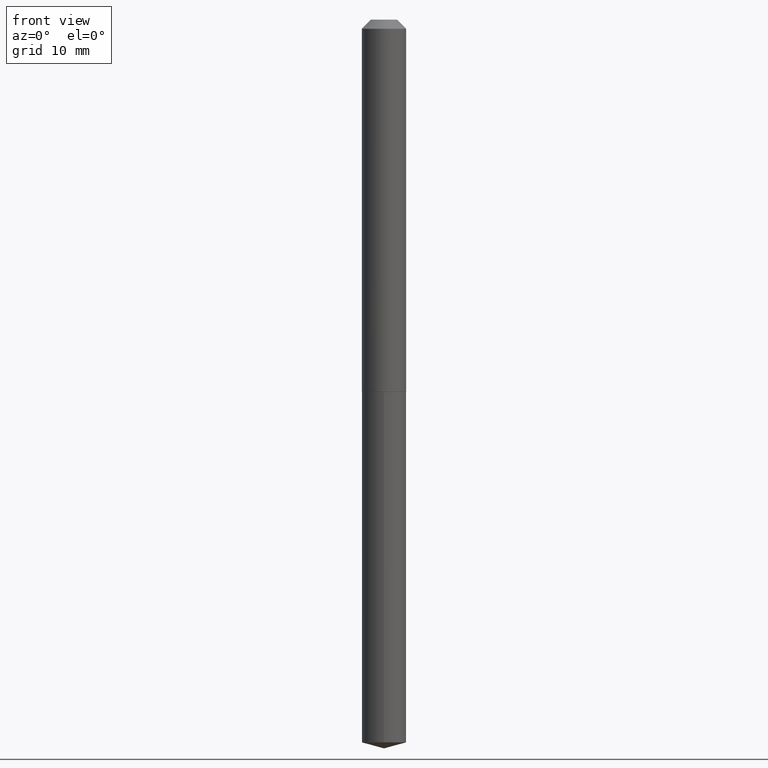
[diagram: clean part render]
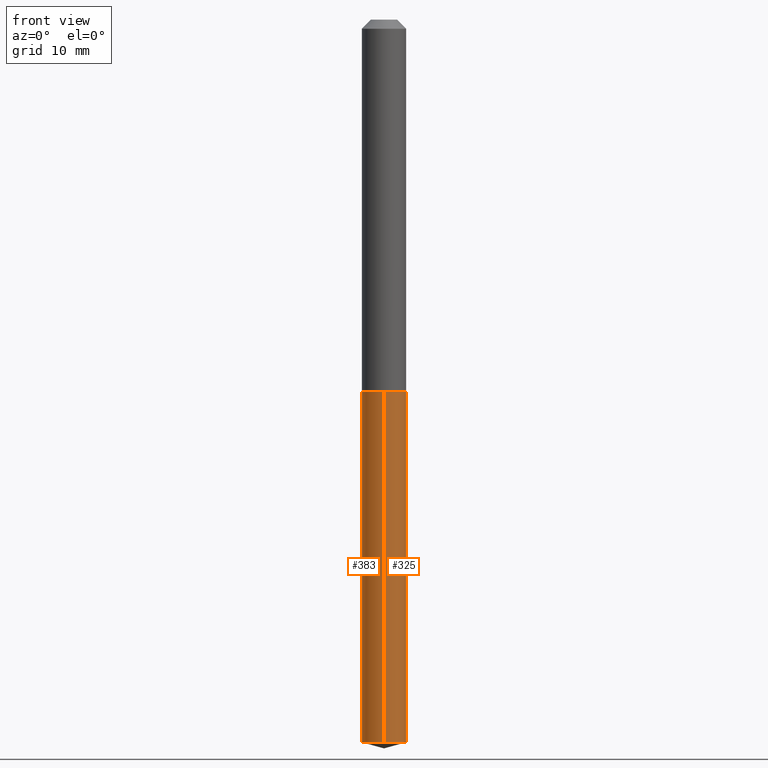
[diagram: same view with one multi-face feature highlighted, each face labeled with its STEP entity id]
A machine part, front view. The highlighted faces form ONE feature: a constant-radius fillet chain: 2 tangent blend faces with common blend radius 1.9304 mm. The faces share edges in the B-rep.
Their STEP definitions:
[1] entity #383 (Cylinder):
#3 = LINE ( 'NONE', #55, #130 ) ;
#4 = EDGE_LOOP ( 'NONE', ( #146, #76, #121, #308 ) ) ;
#5 = DIRECTION ( 'NONE',  ( -6.982962677686265133E-15, -1.000000000000000000, 3.594536833768767206E-15 ) ) ;
#7 = AXIS2_PLACEMENT_3D ( 'NONE', #343, #35, #64 ) ;
#24 = VERTEX_POINT ( 'NONE', #289 ) ;
#35 = DIRECTION ( 'NONE',  ( -2.445481943638452812E-29, 3.491462525262259251E-15, 1.000000000000000000 ) ) ;
#36 = DIRECTION ( 'NONE',  ( -2.445481943638452812E-29, 3.491462525262259251E-15, 1.000000000000000000 ) ) ;
#38 = VECTOR ( 'NONE', #298, 39.37007874015748143 ) ;
#44 = EDGE_CURVE ( 'NONE', #85, #24, #3, .T. ) ;
#55 = CARTESIAN_POINT ( 'NONE',  ( 5.400124791777073865E-16, 0.07599999999999554334, -1.277000000000000357 ) ) ;
#64 = DIRECTION ( 'NONE',  ( -6.982962677686265133E-15, -1.000000000000000000, 0.000000000000000000 ) ) ;
#73 = DIRECTION ( 'NONE',  ( -6.982962677686265133E-15, -1.000000000000000000, 3.594536833768767206E-15 ) ) ;
#74 = CARTESIAN_POINT ( 'NONE',  ( -5.307051635041250548E-16, -0.07600000000000446676, -1.276999999999999691 ) ) ;
#76 = ORIENTED_EDGE ( 'NONE', *, *, #134, .T. ) ;
#85 = VERTEX_POINT ( 'NONE', #307 ) ;
#86 = CYLINDRICAL_SURFACE ( 'NONE', #250, 0.07600000000000001199 ) ;
#101 = CARTESIAN_POINT ( 'NONE',  ( 3.122863665498419694E-29, -4.458621669702696819E-15, -1.277000000000000135 ) ) ;
#110 = LINE ( 'NONE', #74, #38 ) ;
#121 = ORIENTED_EDGE ( 'NONE', *, *, #340, .T. ) ;
#130 = VECTOR ( 'NONE', #153, 39.37007874015748143 ) ;
#134 = EDGE_CURVE ( 'NONE', #85, #389, #275, .T. ) ;
#146 = ORIENTED_EDGE ( 'NONE', *, *, #44, .F. ) ;
#148 = AXIS2_PLACEMENT_3D ( 'NONE', #101, #36, #73 ) ;
#153 = DIRECTION ( 'NONE',  ( -2.445481943638452812E-29, 3.491462525262259251E-15, 1.000000000000000000 ) ) ;
#154 = DIRECTION ( 'NONE',  ( -2.445481943638452812E-29, 3.491462525262259251E-15, 1.000000000000000000 ) ) ;
#197 = CARTESIAN_POINT ( 'NONE',  ( -5.307051635041250548E-16, -0.07600000000000446676, -1.276999999999999691 ) ) ;
#250 = AXIS2_PLACEMENT_3D ( 'NONE', #311, #154, #5 ) ;
#275 = CIRCLE ( 'NONE', #7, 0.07600000000000001199 ) ;
#280 = EDGE_CURVE ( 'NONE', #24, #290, #324, .T. ) ;
#285 = CARTESIAN_POINT ( 'NONE',  ( -5.307051635040953739E-16, -0.07600000000000863010, -2.479635861375235173 ) ) ;
#289 = CARTESIAN_POINT ( 'NONE',  ( 5.400124791777368701E-16, 0.07599999999999554334, -1.277000000000000357 ) ) ;
#290 = VERTEX_POINT ( 'NONE', #197 ) ;
#298 = DIRECTION ( 'NONE',  ( -2.445481943638452812E-29, 3.491462525262259251E-15, 1.000000000000000000 ) ) ;
#307 = CARTESIAN_POINT ( 'NONE',  ( 5.400124791777365743E-16, 0.07599999999999132450, -2.479635861375235173 ) ) ;
#308 = ORIENTED_EDGE ( 'NONE', *, *, #280, .F. ) ;
#311 = CARTESIAN_POINT ( 'NONE',  ( 3.122863665498419694E-29, -4.458621669702696819E-15, -1.277000000000000135 ) ) ;
#324 = CIRCLE ( 'NONE', #148, 0.07600000000000001199 ) ;
#340 = EDGE_CURVE ( 'NONE', #389, #290, #110, .T. ) ;
#343 = CARTESIAN_POINT ( 'NONE',  ( 6.063887949263634321E-29, -8.657579711230829508E-15, -2.479635861375235173 ) ) ;
#360 = FACE_OUTER_BOUND ( 'NONE', #4, .T. ) ;
#383 = ADVANCED_FACE ( 'NONE', ( #360 ), #86, .T. ) ;
#389 = VERTEX_POINT ( 'NONE', #285 ) ;
[2] entity #325 (Cylinder):
#3 = LINE ( 'NONE', #55, #130 ) ;
#20 = DIRECTION ( 'NONE',  ( -2.445481943638452812E-29, 3.491462525262259251E-15, 1.000000000000000000 ) ) ;
#24 = VERTEX_POINT ( 'NONE', #289 ) ;
#38 = VECTOR ( 'NONE', #298, 39.37007874015748143 ) ;
#43 = CARTESIAN_POINT ( 'NONE',  ( 6.063887949263634321E-29, -8.657579711230829508E-15, -2.479635861375235173 ) ) ;
#44 = EDGE_CURVE ( 'NONE', #85, #24, #3, .T. ) ;
#55 = CARTESIAN_POINT ( 'NONE',  ( 5.400124791777073865E-16, 0.07599999999999554334, -1.277000000000000357 ) ) ;
#69 = DIRECTION ( 'NONE',  ( -2.445481943638452812E-29, 3.491462525262259251E-15, 1.000000000000000000 ) ) ;
#70 = CIRCLE ( 'NONE', #247, 0.07600000000000001199 ) ;
#74 = CARTESIAN_POINT ( 'NONE',  ( -5.307051635041250548E-16, -0.07600000000000446676, -1.276999999999999691 ) ) ;
#82 = AXIS2_PLACEMENT_3D ( 'NONE', #43, #69, #273 ) ;
#85 = VERTEX_POINT ( 'NONE', #307 ) ;
#110 = LINE ( 'NONE', #74, #38 ) ;
#130 = VECTOR ( 'NONE', #153, 39.37007874015748143 ) ;
#136 = CARTESIAN_POINT ( 'NONE',  ( 3.122863665498419694E-29, -4.458621669702696819E-15, -1.277000000000000135 ) ) ;
#153 = DIRECTION ( 'NONE',  ( -2.445481943638452812E-29, 3.491462525262259251E-15, 1.000000000000000000 ) ) ;
#163 = AXIS2_PLACEMENT_3D ( 'NONE', #136, #166, #348 ) ;
#166 = DIRECTION ( 'NONE',  ( -2.445481943638452812E-29, 3.491462525262259251E-15, 1.000000000000000000 ) ) ;
#168 = CYLINDRICAL_SURFACE ( 'NONE', #163, 0.07600000000000001199 ) ;
#173 = ORIENTED_EDGE ( 'NONE', *, *, #340, .F. ) ;
#176 = EDGE_LOOP ( 'NONE', ( #253, #241, #209, #173 ) ) ;
#197 = CARTESIAN_POINT ( 'NONE',  ( -5.307051635041250548E-16, -0.07600000000000446676, -1.276999999999999691 ) ) ;
#200 = FACE_OUTER_BOUND ( 'NONE', #176, .T. ) ;
#209 = ORIENTED_EDGE ( 'NONE', *, *, #249, .F. ) ;
#241 = ORIENTED_EDGE ( 'NONE', *, *, #44, .T. ) ;
#243 = CARTESIAN_POINT ( 'NONE',  ( 3.122863665498419694E-29, -4.458621669702696819E-15, -1.277000000000000135 ) ) ;
#247 = AXIS2_PLACEMENT_3D ( 'NONE', #243, #20, #382 ) ;
#249 = EDGE_CURVE ( 'NONE', #290, #24, #70, .T. ) ;
#253 = ORIENTED_EDGE ( 'NONE', *, *, #259, .T. ) ;
#259 = EDGE_CURVE ( 'NONE', #389, #85, #299, .T. ) ;
#273 = DIRECTION ( 'NONE',  ( -6.982962677686265133E-15, -1.000000000000000000, 0.000000000000000000 ) ) ;
#285 = CARTESIAN_POINT ( 'NONE',  ( -5.307051635040953739E-16, -0.07600000000000863010, -2.479635861375235173 ) ) ;
#289 = CARTESIAN_POINT ( 'NONE',  ( 5.400124791777368701E-16, 0.07599999999999554334, -1.277000000000000357 ) ) ;
#290 = VERTEX_POINT ( 'NONE', #197 ) ;
#298 = DIRECTION ( 'NONE',  ( -2.445481943638452812E-29, 3.491462525262259251E-15, 1.000000000000000000 ) ) ;
#299 = CIRCLE ( 'NONE', #82, 0.07600000000000001199 ) ;
#307 = CARTESIAN_POINT ( 'NONE',  ( 5.400124791777365743E-16, 0.07599999999999132450, -2.479635861375235173 ) ) ;
#325 = ADVANCED_FACE ( 'NONE', ( #200 ), #168, .T. ) ;
#340 = EDGE_CURVE ( 'NONE', #389, #290, #110, .T. ) ;
#348 = DIRECTION ( 'NONE',  ( -6.982962677686265133E-15, -1.000000000000000000, 3.594536833768767206E-15 ) ) ;
#382 = DIRECTION ( 'NONE',  ( -6.982962677686265133E-15, -1.000000000000000000, 3.594536833768767206E-15 ) ) ;
#389 = VERTEX_POINT ( 'NONE', #285 ) ;